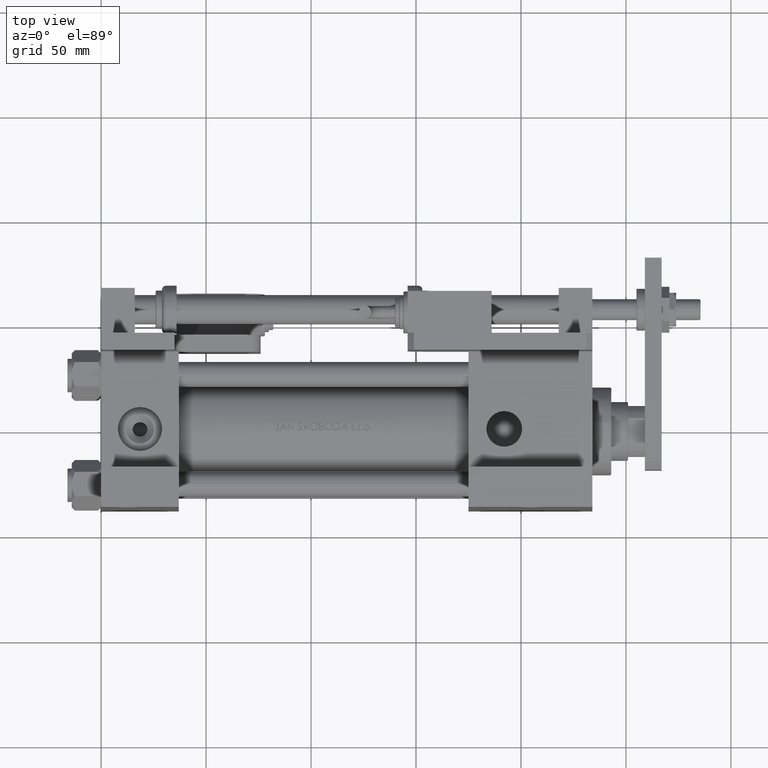
[diagram: clean part render]
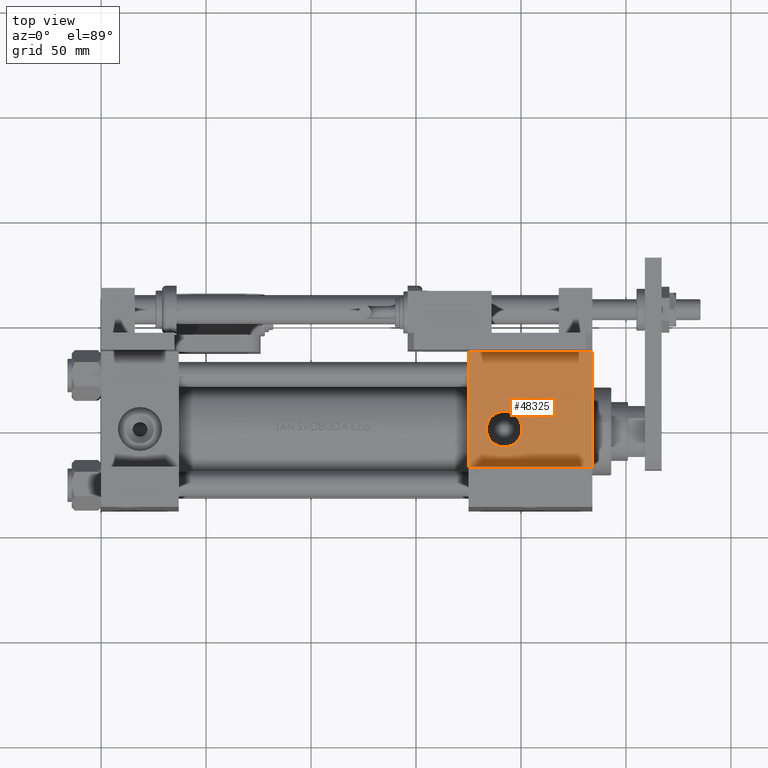
[diagram: same view with one face highlighted and labeled with its STEP entity id]
A machine part, top view. The second image highlights one B-rep face of the part: STEP entity #48325.
In plain terms, the highlighted planar face has unit normal (0, -0, -1).
Its self-contained STEP definition (entity closure, byte-faithful):
#1506 = LINE ( 'NONE', #13643, #16275 ) ;
#1816 = DIRECTION ( 'NONE',  ( 0.000000000000000000, 0.000000000000000000, -1.000000000000000000 ) ) ;
#7006 = CARTESIAN_POINT ( 'NONE',  ( 175.0000000000000284, -37.50000000000000000, 37.49999999999997868 ) ) ;
#12162 = CARTESIAN_POINT ( 'NONE',  ( 175.0000000000000284, -37.50000000000000000, 37.00000000000000711 ) ) ;
#13476 = EDGE_LOOP ( 'NONE', ( #27559, #39137 ) ) ;
#13643 = CARTESIAN_POINT ( 'NONE',  ( 175.0000000000000284, -37.50000000000000000, -18.50000000000000000 ) ) ;
#14092 = VERTEX_POINT ( 'NONE', #29561 ) ;
#14547 = ORIENTED_EDGE ( 'NONE', *, *, #45185, .T. ) ;
#14645 = DIRECTION ( 'NONE',  ( 0.000000000000000000, 1.000000000000000000, -9.251858538542972814E-17 ) ) ;
#15908 = CARTESIAN_POINT ( 'NONE',  ( 234.0000000000000000, -37.50000000000000000, 37.00000000000000711 ) ) ;
#15926 = CIRCLE ( 'NONE', #22795, 8.500000000000010658 ) ;
#16275 = VECTOR ( 'NONE', #43001, 1000.000000000000000 ) ;
#17860 = DIRECTION ( 'NONE',  ( 0.000000000000000000, -1.000000000000000000, -8.673617379884036705E-17 ) ) ;
#18125 = DIRECTION ( 'NONE',  ( 0.000000000000000000, 0.000000000000000000, -1.000000000000000000 ) ) ;
#18647 = AXIS2_PLACEMENT_3D ( 'NONE', #34675, #22569, #1816 ) ;
#18698 = CARTESIAN_POINT ( 'NONE',  ( 234.0000000000000000, -37.50000000000000000, 37.49999999999997868 ) ) ;
#21565 = VERTEX_POINT ( 'NONE', #38978 ) ;
#22569 = DIRECTION ( 'NONE',  ( 0.000000000000000000, -1.000000000000000000, -8.673617379884036705E-17 ) ) ;
#22733 = FACE_OUTER_BOUND ( 'NONE', #39670, .T. ) ;
#22795 = AXIS2_PLACEMENT_3D ( 'NONE', #38304, #17860, #18125 ) ;
#23003 = FACE_BOUND ( 'NONE', #13476, .T. ) ;
#23990 = ORIENTED_EDGE ( 'NONE', *, *, #32217, .T. ) ;
#23998 = DIRECTION ( 'NONE',  ( 0.000000000000000000, -9.251858538542972814E-17, -1.000000000000000000 ) ) ;
#26494 = VECTOR ( 'NONE', #30723, 1000.000000000000000 ) ;
#27559 = ORIENTED_EDGE ( 'NONE', *, *, #40849, .F. ) ;
#27743 = LINE ( 'NONE', #15908, #51558 ) ;
#29330 = VERTEX_POINT ( 'NONE', #36266 ) ;
#29561 = CARTESIAN_POINT ( 'NONE',  ( 192.0000000000000000, -37.50000000000000000, -8.500000000000007105 ) ) ;
#29863 = VERTEX_POINT ( 'NONE', #40652 ) ;
#30723 = DIRECTION ( 'NONE',  ( 0.000000000000000000, -9.251858538542972814E-17, -1.000000000000000000 ) ) ;
#32017 = ORIENTED_EDGE ( 'NONE', *, *, #43407, .F. ) ;
#32217 = EDGE_CURVE ( 'NONE', #40536, #21565, #40687, .T. ) ;
#34675 = CARTESIAN_POINT ( 'NONE',  ( 192.0000000000000000, -37.50000000000000000, 3.469446951953615767E-15 ) ) ;
#36266 = CARTESIAN_POINT ( 'NONE',  ( 192.0000000000000000, -37.50000000000000000, 8.500000000000014211 ) ) ;
#37192 = EDGE_CURVE ( 'NONE', #29330, #14092, #15926, .T. ) ;
#37512 = AXIS2_PLACEMENT_3D ( 'NONE', #18698, #14645, #51556 ) ;
#38218 = VECTOR ( 'NONE', #23998, 1000.000000000000000 ) ;
#38304 = CARTESIAN_POINT ( 'NONE',  ( 192.0000000000000000, -37.50000000000000000, 3.469446951953615767E-15 ) ) ;
#38978 = CARTESIAN_POINT ( 'NONE',  ( 175.0000000000000284, -37.50000000000000000, -18.50000000000000000 ) ) ;
#39055 = CARTESIAN_POINT ( 'NONE',  ( 234.0000000000000000, -37.50000000000000000, 37.49999999999997868 ) ) ;
#39137 = ORIENTED_EDGE ( 'NONE', *, *, #37192, .F. ) ;
#39149 = PLANE ( 'NONE',  #37512 ) ;
#39604 = ORIENTED_EDGE ( 'NONE', *, *, #46433, .T. ) ;
#39670 = EDGE_LOOP ( 'NONE', ( #32017, #39604, #23990, #14547 ) ) ;
#40536 = VERTEX_POINT ( 'NONE', #12162 ) ;
#40595 = VERTEX_POINT ( 'NONE', #42046 ) ;
#40652 = CARTESIAN_POINT ( 'NONE',  ( 234.0000000000000000, -37.50000000000000711, -18.50000000000000355 ) ) ;
#40687 = LINE ( 'NONE', #7006, #38218 ) ;
#40849 = EDGE_CURVE ( 'NONE', #14092, #29330, #47027, .T. ) ;
#42046 = CARTESIAN_POINT ( 'NONE',  ( 234.0000000000000000, -37.50000000000000000, 37.00000000000000711 ) ) ;
#43001 = DIRECTION ( 'NONE',  ( 1.000000000000000000, -1.176083712526648949E-16, 0.000000000000000000 ) ) ;
#43407 = EDGE_CURVE ( 'NONE', #40595, #29863, #51460, .T. ) ;
#45185 = EDGE_CURVE ( 'NONE', #21565, #29863, #1506, .T. ) ;
#46433 = EDGE_CURVE ( 'NONE', #40595, #40536, #27743, .T. ) ;
#47027 = CIRCLE ( 'NONE', #18647, 8.500000000000010658 ) ;
#48325 = ADVANCED_FACE ( 'NONE', ( #23003, #22733 ), #39149, .F. ) ;
#51460 = LINE ( 'NONE', #39055, #26494 ) ;
#51556 = DIRECTION ( 'NONE',  ( 0.000000000000000000, 9.251858538542972814E-17, 1.000000000000000000 ) ) ;
#51558 = VECTOR ( 'NONE', #53089, 1000.000000000000000 ) ;
#53089 = DIRECTION ( 'NONE',  ( -1.000000000000000000, 0.000000000000000000, 0.000000000000000000 ) ) ;